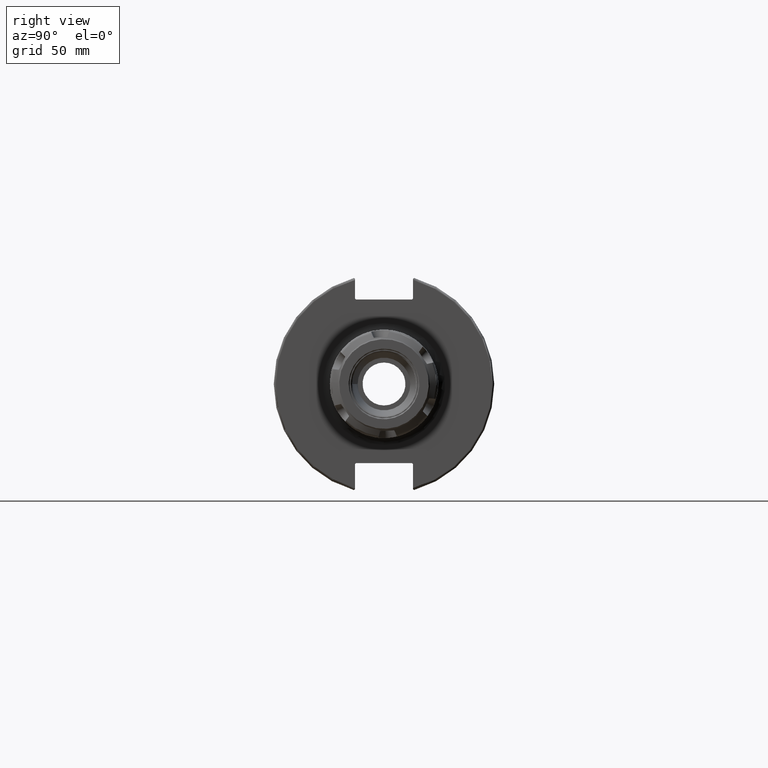
[diagram: clean part render]
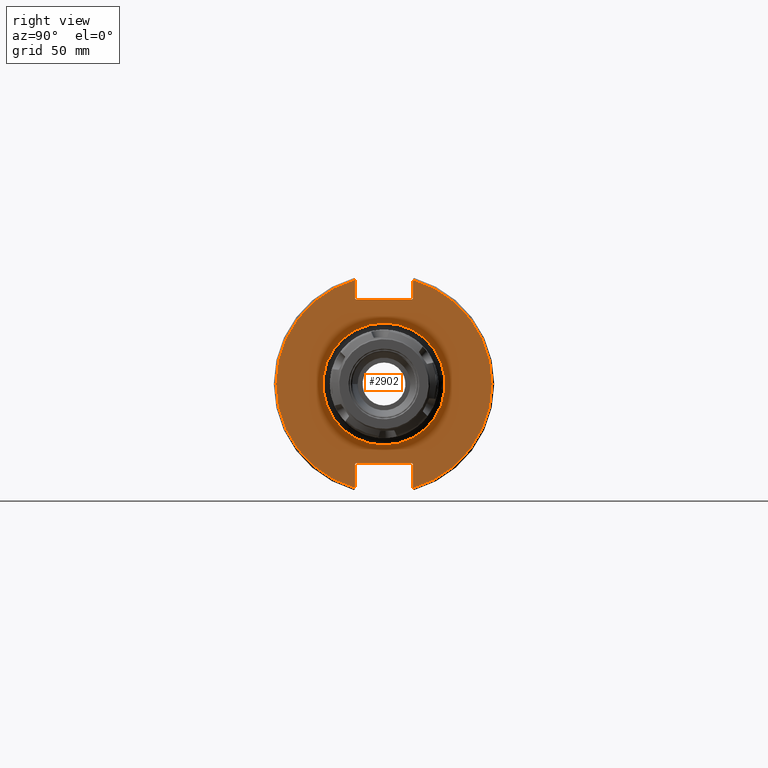
[diagram: same view with one face highlighted and labeled with its STEP entity id]
A machine part, right view. The second image highlights one B-rep face of the part: STEP entity #2902.
In plain terms, the highlighted planar face has unit normal (1, 0, 0).
Its self-contained STEP definition (entity closure, byte-faithful):
#200=LINE('',#4392,#370);
#201=LINE('',#4394,#371);
#202=LINE('',#4396,#372);
#203=LINE('',#4398,#373);
#204=LINE('',#4400,#374);
#205=LINE('',#4404,#375);
#206=LINE('',#4406,#376);
#207=LINE('',#4408,#377);
#208=LINE('',#4410,#378);
#209=LINE('',#4411,#379);
#370=VECTOR('',#3553,10.);
#371=VECTOR('',#3554,10.);
#372=VECTOR('',#3555,10.);
#373=VECTOR('',#3556,10.);
#374=VECTOR('',#3557,10.);
#375=VECTOR('',#3560,10.);
#376=VECTOR('',#3561,10.);
#377=VECTOR('',#3562,10.);
#378=VECTOR('',#3563,10.);
#379=VECTOR('',#3564,10.);
#577=FACE_BOUND('',#845,.T.);
#601=PLANE('',#3163);
#673=FACE_OUTER_BOUND('',#844,.T.);
#844=EDGE_LOOP('',(#2010,#2011,#2012,#2013,#2014,#2015,#2016,#2017,#2018,
#2019,#2020,#2021));
#845=EDGE_LOOP('',(#2022));
#1050=CIRCLE('',#3162,27.25);
#1051=CIRCLE('',#3164,48.2125);
#1052=CIRCLE('',#3165,48.2125);
#1211=VERTEX_POINT('',#4384);
#1212=VERTEX_POINT('',#4388);
#1213=VERTEX_POINT('',#4389);
#1214=VERTEX_POINT('',#4391);
#1215=VERTEX_POINT('',#4393);
#1216=VERTEX_POINT('',#4395);
#1217=VERTEX_POINT('',#4397);
#1218=VERTEX_POINT('',#4399);
#1219=VERTEX_POINT('',#4401);
#1220=VERTEX_POINT('',#4403);
#1221=VERTEX_POINT('',#4405);
#1222=VERTEX_POINT('',#4407);
#1223=VERTEX_POINT('',#4409);
#1525=EDGE_CURVE('',#1211,#1211,#1050,.T.);
#1526=EDGE_CURVE('',#1212,#1213,#1051,.T.);
#1527=EDGE_CURVE('',#1212,#1214,#200,.T.);
#1528=EDGE_CURVE('',#1215,#1214,#201,.T.);
#1529=EDGE_CURVE('',#1215,#1216,#202,.T.);
#1530=EDGE_CURVE('',#1217,#1216,#203,.T.);
#1531=EDGE_CURVE('',#1217,#1218,#204,.T.);
#1532=EDGE_CURVE('',#1219,#1218,#1052,.T.);
#1533=EDGE_CURVE('',#1219,#1220,#205,.T.);
#1534=EDGE_CURVE('',#1221,#1220,#206,.T.);
#1535=EDGE_CURVE('',#1221,#1222,#207,.T.);
#1536=EDGE_CURVE('',#1223,#1222,#208,.T.);
#1537=EDGE_CURVE('',#1223,#1213,#209,.T.);
#2010=ORIENTED_EDGE('',*,*,#1526,.F.);
#2011=ORIENTED_EDGE('',*,*,#1527,.T.);
#2012=ORIENTED_EDGE('',*,*,#1528,.F.);
#2013=ORIENTED_EDGE('',*,*,#1529,.T.);
#2014=ORIENTED_EDGE('',*,*,#1530,.F.);
#2015=ORIENTED_EDGE('',*,*,#1531,.T.);
#2016=ORIENTED_EDGE('',*,*,#1532,.F.);
#2017=ORIENTED_EDGE('',*,*,#1533,.T.);
#2018=ORIENTED_EDGE('',*,*,#1534,.F.);
#2019=ORIENTED_EDGE('',*,*,#1535,.T.);
#2020=ORIENTED_EDGE('',*,*,#1536,.F.);
#2021=ORIENTED_EDGE('',*,*,#1537,.T.);
#2022=ORIENTED_EDGE('',*,*,#1525,.F.);
#2902=ADVANCED_FACE('',(#673,#577),#601,.T.);
#3162=AXIS2_PLACEMENT_3D('',#4386,#3547,#3548);
#3163=AXIS2_PLACEMENT_3D('',#4387,#3549,#3550);
#3164=AXIS2_PLACEMENT_3D('',#4390,#3551,#3552);
#3165=AXIS2_PLACEMENT_3D('',#4402,#3558,#3559);
#3547=DIRECTION('center_axis',(1.,0.,0.));
#3548=DIRECTION('ref_axis',(0.,-1.,-1.22464679914735E-16));
#3549=DIRECTION('center_axis',(1.,0.,0.));
#3550=DIRECTION('ref_axis',(0.,0.,-1.));
#3551=DIRECTION('center_axis',(-1.,0.,0.));
#3552=DIRECTION('ref_axis',(0.,1.,-6.12323399573677E-17));
#3553=DIRECTION('',(0.,0.,-1.));
#3554=DIRECTION('',(0.,0.707106781186549,0.707106781186546));
#3555=DIRECTION('',(0.,-1.,0.));
#3556=DIRECTION('',(0.,0.707106781186549,-0.707106781186546));
#3557=DIRECTION('',(0.,0.,1.));
#3558=DIRECTION('center_axis',(-1.,0.,0.));
#3559=DIRECTION('ref_axis',(0.,-1.,1.60812264967664E-16));
#3560=DIRECTION('',(0.,0.,1.));
#3561=DIRECTION('',(0.,-0.707106781186549,-0.707106781186546));
#3562=DIRECTION('',(0.,1.,0.));
#3563=DIRECTION('',(0.,-0.707106781186548,0.707106781186548));
#3564=DIRECTION('',(0.,0.,-1.));
#4384=CARTESIAN_POINT('',(19.05,-3.33716252767654E-15,-27.25));
#4386=CARTESIAN_POINT('Origin',(19.05,0.,0.));
#4387=CARTESIAN_POINT('Origin',(19.05,0.,0.));
#4388=CARTESIAN_POINT('',(19.05,12.95,46.4407434937254));
#4389=CARTESIAN_POINT('',(19.05,12.95,-46.4407434937254));
#4390=CARTESIAN_POINT('Origin',(19.05,0.,0.));
#4391=CARTESIAN_POINT('',(19.05,12.95,38.219));
#4392=CARTESIAN_POINT('',(19.05,12.95,18.8595));
#4393=CARTESIAN_POINT('',(19.05,12.45,37.719));
#4394=CARTESIAN_POINT('',(19.05,0.0327499999999836,25.30175));
#4395=CARTESIAN_POINT('',(19.05,-12.45,37.719));
#4396=CARTESIAN_POINT('',(19.05,0.,37.719));
#4397=CARTESIAN_POINT('',(19.05,-12.95,38.219));
#4398=CARTESIAN_POINT('',(19.05,-0.0327499999999817,25.30175));
#4399=CARTESIAN_POINT('',(19.05,-12.95,46.4407434937254));
#4400=CARTESIAN_POINT('',(19.05,-12.95,18.8595));
#4401=CARTESIAN_POINT('',(19.05,-12.95,-46.4407434937254));
#4402=CARTESIAN_POINT('Origin',(19.05,0.,0.));
#4403=CARTESIAN_POINT('',(19.05,-12.95,-35.806));
#4404=CARTESIAN_POINT('',(19.05,-12.95,-17.653));
#4405=CARTESIAN_POINT('',(19.05,-12.45,-35.306));
#4406=CARTESIAN_POINT('',(19.05,-0.635999999999989,-23.492));
#4407=CARTESIAN_POINT('',(19.05,12.45,-35.306));
#4408=CARTESIAN_POINT('',(19.05,-3.88578058618805E-15,-35.306));
#4409=CARTESIAN_POINT('',(19.05,12.95,-35.806));
#4410=CARTESIAN_POINT('',(19.05,0.635999999999995,-23.492));
#4411=CARTESIAN_POINT('',(19.05,12.95,-17.653));